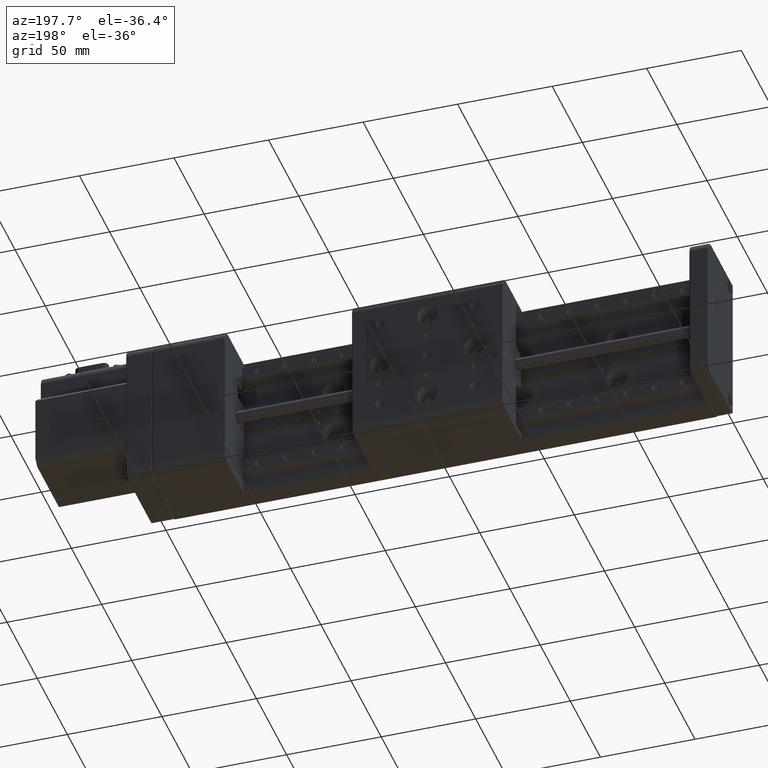
[diagram: clean part render]
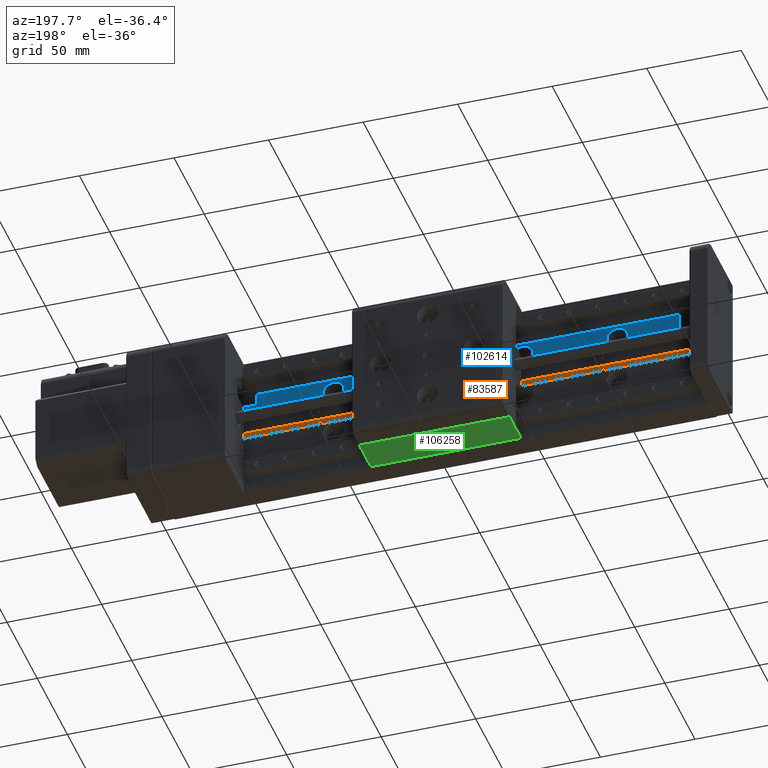
[diagram: same view with three faces highlighted in distinct colors, each labeled with its STEP entity id]
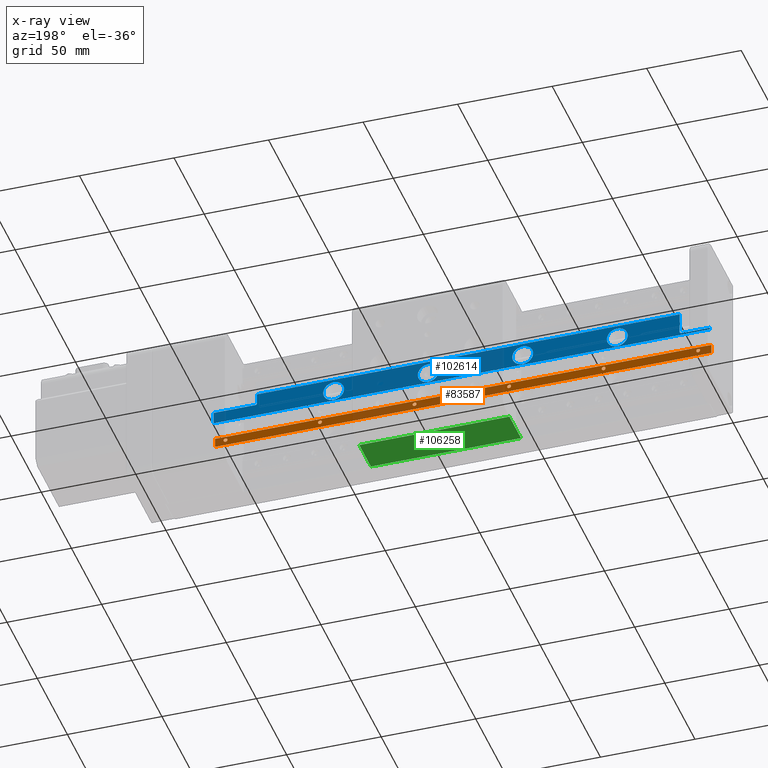
[diagram: x-ray of the same camera — body ghosted, the three highlighted faces saturated]
A machine part, auxiliary view with three faces highlighted in distinct colors.
The next image is the same camera in x-ray (body ghosted, the three faces saturated) — at least one of them is partly hidden behind the body in this view.
Their STEP definitions:

[orange] entity #83587 — the highlighted planar face has unit normal (0, -1, 0).
#45 = EDGE_CURVE ( 'NONE', #28521, #17861, #93729, .T. ) ;
#1032 = DIRECTION ( 'NONE',  ( -0.0000000000000000000, 1.000000000000000000, -0.0000000000000000000 ) ) ;
#1199 = EDGE_CURVE ( 'NONE', #88093, #45872, #95722, .T. ) ;
#2012 = CIRCLE ( 'NONE', #103879, 1.024999999999998100 ) ;
#4675 = CIRCLE ( 'NONE', #99917, 1.024999999999998100 ) ;
#5235 = DIRECTION ( 'NONE',  ( -0.0000000000000000000, 1.000000000000000000, -0.0000000000000000000 ) ) ;
#6503 = EDGE_CURVE ( 'NONE', #17861, #28521, #38615, .T. ) ;
#6964 = ORIENTED_EDGE ( 'NONE', *, *, #70150, .F. ) ;
#7733 = CIRCLE ( 'NONE', #11688, 1.024999999999998100 ) ;
#7902 = DIRECTION ( 'NONE',  ( -0.0000000000000000000, 1.000000000000000000, -0.0000000000000000000 ) ) ;
#7983 = CARTESIAN_POINT ( 'NONE',  ( 115.4999999999999400, 9.500000000000005300, -44.52499999999999900 ) ) ;
#9391 = AXIS2_PLACEMENT_3D ( 'NONE', #21254, #50996, #97934 ) ;
#10369 = CIRCLE ( 'NONE', #119397, 1.024999999999998100 ) ;
#10502 = EDGE_CURVE ( 'NONE', #93958, #53678, #7733, .T. ) ;
#11158 = ORIENTED_EDGE ( 'NONE', *, *, #44471, .F. ) ;
#11688 = AXIS2_PLACEMENT_3D ( 'NONE', #118979, #51442, #61698 ) ;
#12665 = CARTESIAN_POINT ( 'NONE',  ( 15.49999999999995700, 9.500000000000007100, -44.52499999999999900 ) ) ;
#14495 = CARTESIAN_POINT ( 'NONE',  ( 65.49999999999994300, 9.500000000000005300, -44.52499999999999900 ) ) ;
#14934 = EDGE_LOOP ( 'NONE', ( #76589, #116644, #56588, #76408 ) ) ;
#17861 = VERTEX_POINT ( 'NONE', #103839 ) ;
#19577 = CARTESIAN_POINT ( 'NONE',  ( 115.4999999999999400, 9.500000000000005300, -43.50000000000000000 ) ) ;
#19748 = EDGE_CURVE ( 'NONE', #24337, #52089, #116614, .T. ) ;
#19954 = DIRECTION ( 'NONE',  ( 0.0000000000000000000, -0.0000000000000000000, -1.000000000000000000 ) ) ;
#21254 = CARTESIAN_POINT ( 'NONE',  ( 65.49999999999994300, 9.500000000000005300, -43.50000000000000000 ) ) ;
#21904 = AXIS2_PLACEMENT_3D ( 'NONE', #104768, #57785, #75905 ) ;
#22689 = AXIS2_PLACEMENT_3D ( 'NONE', #57659, #1032, #113694 ) ;
#24337 = VERTEX_POINT ( 'NONE', #83739 ) ;
#26008 = ORIENTED_EDGE ( 'NONE', *, *, #88448, .F. ) ;
#26400 = DIRECTION ( 'NONE',  ( -0.0000000000000000000, 1.000000000000000000, -0.0000000000000000000 ) ) ;
#26488 = VERTEX_POINT ( 'NONE', #84172 ) ;
#26610 = EDGE_CURVE ( 'NONE', #92352, #81903, #74490, .T. ) ;
#28400 = FACE_BOUND ( 'NONE', #58265, .T. ) ;
#28521 = VERTEX_POINT ( 'NONE', #53864 ) ;
#28777 = CARTESIAN_POINT ( 'NONE',  ( 270.9999999999999400, 9.500000000000000000, -46.50000000000000000 ) ) ;
#29769 = CARTESIAN_POINT ( 'NONE',  ( 8.500000000000007100, 9.500000000000000000, -41.50000000000000000 ) ) ;
#29947 = FACE_BOUND ( 'NONE', #79765, .T. ) ;
#31520 = CARTESIAN_POINT ( 'NONE',  ( 165.4999999999999400, 9.500000000000003600, -44.52499999999999900 ) ) ;
#31997 = VERTEX_POINT ( 'NONE', #28777 ) ;
#32961 = ORIENTED_EDGE ( 'NONE', *, *, #10502, .F. ) ;
#33155 = DIRECTION ( 'NONE',  ( -0.0000000000000000000, 1.000000000000000000, -0.0000000000000000000 ) ) ;
#33468 = CARTESIAN_POINT ( 'NONE',  ( 271.0000000000000000, 9.499999999999994700, -41.50000000000000000 ) ) ;
#34852 = EDGE_CURVE ( 'NONE', #26488, #96425, #2012, .T. ) ;
#37070 = EDGE_LOOP ( 'NONE', ( #41878, #11158 ) ) ;
#37331 = FACE_BOUND ( 'NONE', #78215, .T. ) ;
#38615 = CIRCLE ( 'NONE', #85518, 1.024999999999998100 ) ;
#39602 = LINE ( 'NONE', #64749, #108802 ) ;
#39608 = CIRCLE ( 'NONE', #75544, 1.024999999999998100 ) ;
#40371 = DIRECTION ( 'NONE',  ( -1.000000000000000000, -0.0000000000000000000, -0.0000000000000000000 ) ) ;
#40762 = EDGE_CURVE ( 'NONE', #100096, #74455, #120085, .T. ) ;
#41680 = CARTESIAN_POINT ( 'NONE',  ( 15.49999999999995700, 9.500000000000007100, -43.50000000000000000 ) ) ;
#41878 = ORIENTED_EDGE ( 'NONE', *, *, #26610, .F. ) ;
#43288 = CARTESIAN_POINT ( 'NONE',  ( 65.49999999999994300, 9.500000000000005300, -42.47500000000000100 ) ) ;
#43524 = AXIS2_PLACEMENT_3D ( 'NONE', #19577, #84360, #121495 ) ;
#44471 = EDGE_CURVE ( 'NONE', #81903, #92352, #117945, .T. ) ;
#45872 = VERTEX_POINT ( 'NONE', #7983 ) ;
#46834 = CARTESIAN_POINT ( 'NONE',  ( 115.4999999999999400, 9.500000000000005300, -43.50000000000000000 ) ) ;
#47360 = ORIENTED_EDGE ( 'NONE', *, *, #99134, .F. ) ;
#49188 = FACE_OUTER_BOUND ( 'NONE', #14934, .T. ) ;
#50628 = CARTESIAN_POINT ( 'NONE',  ( 165.4999999999999400, 9.500000000000003600, -43.50000000000000000 ) ) ;
#50996 = DIRECTION ( 'NONE',  ( -0.0000000000000000000, 1.000000000000000000, -0.0000000000000000000 ) ) ;
#51442 = DIRECTION ( 'NONE',  ( -0.0000000000000000000, 1.000000000000000000, -0.0000000000000000000 ) ) ;
#52089 = VERTEX_POINT ( 'NONE', #12665 ) ;
#53678 = VERTEX_POINT ( 'NONE', #57930 ) ;
#53864 = CARTESIAN_POINT ( 'NONE',  ( 265.4999999999999400, 9.500000000000001800, -44.52499999999999900 ) ) ;
#55183 = ORIENTED_EDGE ( 'NONE', *, *, #45, .F. ) ;
#56235 = DIRECTION ( 'NONE',  ( -0.0000000000000000000, -0.0000000000000000000, 1.000000000000000000 ) ) ;
#56588 = ORIENTED_EDGE ( 'NONE', *, *, #61706, .F. ) ;
#57659 = CARTESIAN_POINT ( 'NONE',  ( 265.4999999999999400, 9.500000000000001800, -43.50000000000000700 ) ) ;
#57785 = DIRECTION ( 'NONE',  ( -0.0000000000000000000, 1.000000000000000000, -0.0000000000000000000 ) ) ;
#57930 = CARTESIAN_POINT ( 'NONE',  ( 215.4999999999999700, 9.500000000000003600, -44.52499999999999900 ) ) ;
#57943 = CARTESIAN_POINT ( 'NONE',  ( 151.9999999999999700, 9.500000000000000000, -40.00000000000000000 ) ) ;
#58265 = EDGE_LOOP ( 'NONE', ( #99944, #55183 ) ) ;
#59242 = DIRECTION ( 'NONE',  ( 0.0000000000000000000, 0.0000000000000000000, 1.000000000000000000 ) ) ;
#61698 = DIRECTION ( 'NONE',  ( 0.0000000000000000000, 0.0000000000000000000, 1.000000000000000000 ) ) ;
#61706 = EDGE_CURVE ( 'NONE', #31997, #88048, #117358, .T. ) ;
#63193 = ORIENTED_EDGE ( 'NONE', *, *, #19748, .F. ) ;
#64749 = CARTESIAN_POINT ( 'NONE',  ( 151.9999999999999700, 9.500000000000000000, -41.50000000000000000 ) ) ;
#65157 = DIRECTION ( 'NONE',  ( 0.0000000000000000000, 0.0000000000000000000, 1.000000000000000000 ) ) ;
#66158 = ORIENTED_EDGE ( 'NONE', *, *, #108063, .F. ) ;
#66482 = CARTESIAN_POINT ( 'NONE',  ( 8.500000000000007100, 9.500000000000000000, -33.50000000000000000 ) ) ;
#66587 = PLANE ( 'NONE',  #90743 ) ;
#70150 = EDGE_CURVE ( 'NONE', #52089, #24337, #10369, .T. ) ;
#71070 = EDGE_CURVE ( 'NONE', #74455, #88048, #39602, .T. ) ;
#71517 = CARTESIAN_POINT ( 'NONE',  ( 271.0000000000000000, 9.499999999999994700, -70.00000000000000000 ) ) ;
#72022 = ORIENTED_EDGE ( 'NONE', *, *, #34852, .F. ) ;
#74123 = DIRECTION ( 'NONE',  ( -0.0000000000000000000, 1.000000000000000000, -0.0000000000000000000 ) ) ;
#74455 = VERTEX_POINT ( 'NONE', #29769 ) ;
#74490 = CIRCLE ( 'NONE', #21904, 1.024999999999998100 ) ;
#74610 = DIRECTION ( 'NONE',  ( 1.000000000000000000, 0.0000000000000000000, 0.0000000000000000000 ) ) ;
#74739 = CARTESIAN_POINT ( 'NONE',  ( 215.4999999999999700, 9.500000000000003600, -43.50000000000000000 ) ) ;
#75041 = VECTOR ( 'NONE', #40371, 1000.000000000000000 ) ;
#75544 = AXIS2_PLACEMENT_3D ( 'NONE', #74739, #7902, #102375 ) ;
#75905 = DIRECTION ( 'NONE',  ( 0.0000000000000000000, 0.0000000000000000000, 1.000000000000000000 ) ) ;
#76408 = ORIENTED_EDGE ( 'NONE', *, *, #95863, .T. ) ;
#76589 = ORIENTED_EDGE ( 'NONE', *, *, #40762, .T. ) ;
#77097 = FACE_BOUND ( 'NONE', #100133, .T. ) ;
#78215 = EDGE_LOOP ( 'NONE', ( #63193, #6964 ) ) ;
#79765 = EDGE_LOOP ( 'NONE', ( #86781, #26008 ) ) ;
#80787 = DIRECTION ( 'NONE',  ( 0.0000000000000000000, 0.0000000000000000000, 1.000000000000000000 ) ) ;
#81903 = VERTEX_POINT ( 'NONE', #14495 ) ;
#83587 = ADVANCED_FACE ( 'NONE', ( #37331, #84473, #29947, #77097, #28400, #49188, #112476 ), #66587, .F. ) ;
#83614 = DIRECTION ( 'NONE',  ( 0.0000000000000000000, 0.0000000000000000000, 1.000000000000000000 ) ) ;
#83739 = CARTESIAN_POINT ( 'NONE',  ( 15.49999999999995700, 9.500000000000007100, -42.47500000000000100 ) ) ;
#84172 = CARTESIAN_POINT ( 'NONE',  ( 165.4999999999999400, 9.500000000000003600, -42.47500000000000100 ) ) ;
#84285 = DIRECTION ( 'NONE',  ( 0.0000000000000000000, 0.0000000000000000000, 1.000000000000000000 ) ) ;
#84360 = DIRECTION ( 'NONE',  ( -0.0000000000000000000, 1.000000000000000000, -0.0000000000000000000 ) ) ;
#84473 = FACE_BOUND ( 'NONE', #37070, .T. ) ;
#84488 = CARTESIAN_POINT ( 'NONE',  ( 215.4999999999999700, 9.500000000000003600, -42.47500000000000100 ) ) ;
#84739 = DIRECTION ( 'NONE',  ( 0.0000000000000000000, -1.000000000000000000, 0.0000000000000000000 ) ) ;
#85518 = AXIS2_PLACEMENT_3D ( 'NONE', #111595, #74123, #83614 ) ;
#86781 = ORIENTED_EDGE ( 'NONE', *, *, #1199, .F. ) ;
#87354 = CARTESIAN_POINT ( 'NONE',  ( 8.500000000000007100, 9.500000000000000000, -46.50000000000000000 ) ) ;
#88048 = VERTEX_POINT ( 'NONE', #33468 ) ;
#88093 = VERTEX_POINT ( 'NONE', #99839 ) ;
#88448 = EDGE_CURVE ( 'NONE', #45872, #88093, #4675, .T. ) ;
#90103 = CARTESIAN_POINT ( 'NONE',  ( 15.49999999999995700, 9.500000000000007100, -43.50000000000000000 ) ) ;
#90743 = AXIS2_PLACEMENT_3D ( 'NONE', #57943, #84739, #19954 ) ;
#92305 = VECTOR ( 'NONE', #108577, 1000.000000000000000 ) ;
#92352 = VERTEX_POINT ( 'NONE', #43288 ) ;
#92764 = EDGE_LOOP ( 'NONE', ( #72022, #66158 ) ) ;
#92995 = CIRCLE ( 'NONE', #97915, 1.024999999999998100 ) ;
#93729 = CIRCLE ( 'NONE', #22689, 1.024999999999998100 ) ;
#93958 = VERTEX_POINT ( 'NONE', #84488 ) ;
#94559 = DIRECTION ( 'NONE',  ( -0.0000000000000000000, 1.000000000000000000, -0.0000000000000000000 ) ) ;
#95722 = CIRCLE ( 'NONE', #43524, 1.024999999999998100 ) ;
#95863 = EDGE_CURVE ( 'NONE', #31997, #100096, #103091, .T. ) ;
#96425 = VERTEX_POINT ( 'NONE', #31520 ) ;
#97570 = DIRECTION ( 'NONE',  ( -0.0000000000000000000, 1.000000000000000000, -0.0000000000000000000 ) ) ;
#97915 = AXIS2_PLACEMENT_3D ( 'NONE', #121639, #26400, #65157 ) ;
#97934 = DIRECTION ( 'NONE',  ( 0.0000000000000000000, 0.0000000000000000000, 1.000000000000000000 ) ) ;
#99115 = DIRECTION ( 'NONE',  ( 0.0000000000000000000, 0.0000000000000000000, 1.000000000000000000 ) ) ;
#99134 = EDGE_CURVE ( 'NONE', #53678, #93958, #39608, .T. ) ;
#99839 = CARTESIAN_POINT ( 'NONE',  ( 115.4999999999999400, 9.500000000000005300, -42.47500000000000100 ) ) ;
#99917 = AXIS2_PLACEMENT_3D ( 'NONE', #46834, #94559, #84285 ) ;
#99944 = ORIENTED_EDGE ( 'NONE', *, *, #6503, .F. ) ;
#100096 = VERTEX_POINT ( 'NONE', #103167 ) ;
#100133 = EDGE_LOOP ( 'NONE', ( #32961, #47360 ) ) ;
#100927 = VECTOR ( 'NONE', #56235, 1000.000000000000000 ) ;
#102375 = DIRECTION ( 'NONE',  ( 0.0000000000000000000, 0.0000000000000000000, 1.000000000000000000 ) ) ;
#103091 = LINE ( 'NONE', #87354, #75041 ) ;
#103167 = CARTESIAN_POINT ( 'NONE',  ( 8.500000000000007100, 9.500000000000000000, -46.50000000000000000 ) ) ;
#103839 = CARTESIAN_POINT ( 'NONE',  ( 265.4999999999999400, 9.500000000000001800, -42.47500000000000900 ) ) ;
#103879 = AXIS2_PLACEMENT_3D ( 'NONE', #50628, #97570, #59242 ) ;
#104768 = CARTESIAN_POINT ( 'NONE',  ( 65.49999999999994300, 9.500000000000005300, -43.50000000000000000 ) ) ;
#108063 = EDGE_CURVE ( 'NONE', #96425, #26488, #92995, .T. ) ;
#108577 = DIRECTION ( 'NONE',  ( 0.0000000000000000000, 0.0000000000000000000, 1.000000000000000000 ) ) ;
#108802 = VECTOR ( 'NONE', #74610, 1000.000000000000000 ) ;
#111595 = CARTESIAN_POINT ( 'NONE',  ( 265.4999999999999400, 9.500000000000001800, -43.50000000000000700 ) ) ;
#112476 = FACE_BOUND ( 'NONE', #92764, .T. ) ;
#113694 = DIRECTION ( 'NONE',  ( 0.0000000000000000000, 0.0000000000000000000, 1.000000000000000000 ) ) ;
#116614 = CIRCLE ( 'NONE', #122020, 1.024999999999998100 ) ;
#116644 = ORIENTED_EDGE ( 'NONE', *, *, #71070, .T. ) ;
#117358 = LINE ( 'NONE', #71517, #92305 ) ;
#117945 = CIRCLE ( 'NONE', #9391, 1.024999999999998100 ) ;
#118979 = CARTESIAN_POINT ( 'NONE',  ( 215.4999999999999700, 9.500000000000003600, -43.50000000000000000 ) ) ;
#119397 = AXIS2_PLACEMENT_3D ( 'NONE', #41680, #5235, #80787 ) ;
#120085 = LINE ( 'NONE', #66482, #100927 ) ;
#121495 = DIRECTION ( 'NONE',  ( 0.0000000000000000000, 0.0000000000000000000, 1.000000000000000000 ) ) ;
#121639 = CARTESIAN_POINT ( 'NONE',  ( 165.4999999999999400, 9.500000000000003600, -43.50000000000000000 ) ) ;
#122020 = AXIS2_PLACEMENT_3D ( 'NONE', #90103, #33155, #99115 ) ;

[blue] entity #102614 — the highlighted planar face has unit normal (-0, 1, 0).
#449 = CIRCLE ( 'NONE', #17482, 1.000000000000000900 ) ;
#1800 = EDGE_CURVE ( 'NONE', #79015, #82375, #68941, .T. ) ;
#4577 = ORIENTED_EDGE ( 'NONE', *, *, #84939, .F. ) ;
#6577 = DIRECTION ( 'NONE',  ( 0.0000000000000000000, 0.0000000000000000000, 1.000000000000000000 ) ) ;
#7468 = DIRECTION ( 'NONE',  ( 1.000000000000000000, 0.0000000000000000000, 0.0000000000000000000 ) ) ;
#7617 = VECTOR ( 'NONE', #14237, 1000.000000000000000 ) ;
#8423 = VERTEX_POINT ( 'NONE', #13089 ) ;
#8553 = EDGE_CURVE ( 'NONE', #114875, #101901, #44789, .T. ) ;
#9168 = ORIENTED_EDGE ( 'NONE', *, *, #8553, .T. ) ;
#9555 = EDGE_CURVE ( 'NONE', #36613, #109130, #89607, .T. ) ;
#12028 = DIRECTION ( 'NONE',  ( -1.000000000000000000, 0.0000000000000000000, 0.0000000000000000000 ) ) ;
#12189 = DIRECTION ( 'NONE',  ( -1.000000000000000000, -0.0000000000000000000, -0.0000000000000000000 ) ) ;
#12318 = DIRECTION ( 'NONE',  ( -0.0000000000000000000, 1.000000000000000000, -0.0000000000000000000 ) ) ;
#13089 = CARTESIAN_POINT ( 'NONE',  ( 57.49999999999999300, 12.00000000000000000, -21.99999999999999600 ) ) ;
#14237 = DIRECTION ( 'NONE',  ( -1.000000000000000000, 0.0000000000000000000, 9.130123557772667100E-017 ) ) ;
#14949 = DIRECTION ( 'NONE',  ( 0.0000000000000000000, -0.0000000000000000000, 1.000000000000000000 ) ) ;
#16266 = ORIENTED_EDGE ( 'NONE', *, *, #38659, .T. ) ;
#16881 = CARTESIAN_POINT ( 'NONE',  ( 248.0000000000000000, 12.00000000000000000, -25.99999999999999600 ) ) ;
#17482 = AXIS2_PLACEMENT_3D ( 'NONE', #28963, #122560, #18645 ) ;
#18645 = DIRECTION ( 'NONE',  ( 0.0000000000000000000, 0.0000000000000000000, 1.000000000000000000 ) ) ;
#19058 = CARTESIAN_POINT ( 'NONE',  ( 157.5000000000000000, 12.00000000000000000, -33.00000000000000000 ) ) ;
#19137 = DIRECTION ( 'NONE',  ( 0.0000000000000000000, -1.000000000000000000, -0.0000000000000000000 ) ) ;
#19299 = DIRECTION ( 'NONE',  ( -0.0000000000000000000, 1.000000000000000000, -0.0000000000000000000 ) ) ;
#21400 = ORIENTED_EDGE ( 'NONE', *, *, #113176, .F. ) ;
#22244 = DIRECTION ( 'NONE',  ( -0.0000000000000000000, 1.000000000000000000, -0.0000000000000000000 ) ) ;
#22547 = CIRCLE ( 'NONE', #44353, 5.500000000000005300 ) ;
#23342 = VERTEX_POINT ( 'NONE', #25504 ) ;
#23414 = DIRECTION ( 'NONE',  ( -0.0000000000000000000, 1.000000000000000000, -0.0000000000000000000 ) ) ;
#24491 = DIRECTION ( 'NONE',  ( -0.0000000000000000000, 1.000000000000000000, 0.0000000000000000000 ) ) ;
#24530 = VERTEX_POINT ( 'NONE', #57738 ) ;
#24842 = DIRECTION ( 'NONE',  ( -0.0000000000000000000, 1.000000000000000000, -0.0000000000000000000 ) ) ;
#25418 = CARTESIAN_POINT ( 'NONE',  ( 249.0000000000000000, 12.00000000000000000, -26.99999999999999600 ) ) ;
#25504 = CARTESIAN_POINT ( 'NONE',  ( 24.50000000000002100, 12.00000000000000000, -20.50000000000000000 ) ) ;
#25881 = EDGE_CURVE ( 'NONE', #82375, #79015, #85988, .T. ) ;
#26232 = ORIENTED_EDGE ( 'NONE', *, *, #1800, .F. ) ;
#26667 = AXIS2_PLACEMENT_3D ( 'NONE', #72611, #82127, #6577 ) ;
#28953 = ORIENTED_EDGE ( 'NONE', *, *, #86281, .F. ) ;
#28963 = CARTESIAN_POINT ( 'NONE',  ( 23.50000000000002100, 12.00000000000000000, -31.50000000000000000 ) ) ;
#29019 = DIRECTION ( 'NONE',  ( 0.0000000000000000000, 0.0000000000000000000, 1.000000000000000000 ) ) ;
#29249 = VERTEX_POINT ( 'NONE', #92291 ) ;
#29349 = VECTOR ( 'NONE', #41142, 1000.000000000000000 ) ;
#29857 = VECTOR ( 'NONE', #29019, 1000.000000000000000 ) ;
#30711 = CARTESIAN_POINT ( 'NONE',  ( 152.0000000000000000, 12.00000000000000000, -32.50000000000000000 ) ) ;
#31402 = CARTESIAN_POINT ( 'NONE',  ( 57.49999999999999300, 12.00000000000000000, -27.50000000000000000 ) ) ;
#32655 = ORIENTED_EDGE ( 'NONE', *, *, #64631, .F. ) ;
#32786 = LINE ( 'NONE', #75615, #29857 ) ;
#33330 = DIRECTION ( 'NONE',  ( 0.0000000000000000000, 0.0000000000000000000, 1.000000000000000000 ) ) ;
#33865 = EDGE_LOOP ( 'NONE', ( #56747, #48236 ) ) ;
#35211 = EDGE_LOOP ( 'NONE', ( #4577, #76056 ) ) ;
#36507 = CARTESIAN_POINT ( 'NONE',  ( 8.500000000000007100, 12.00000000000000000, -32.50000000000000000 ) ) ;
#36550 = CIRCLE ( 'NONE', #76539, 5.500000000000005300 ) ;
#36613 = VERTEX_POINT ( 'NONE', #43969 ) ;
#36804 = EDGE_CURVE ( 'NONE', #67850, #53156, #32786, .T. ) ;
#37721 = AXIS2_PLACEMENT_3D ( 'NONE', #76415, #19137, #85113 ) ;
#37970 = FACE_BOUND ( 'NONE', #88466, .T. ) ;
#38659 = EDGE_CURVE ( 'NONE', #55371, #59858, #449, .T. ) ;
#38709 = EDGE_LOOP ( 'NONE', ( #26232, #93173 ) ) ;
#39483 = FACE_OUTER_BOUND ( 'NONE', #98580, .T. ) ;
#41142 = DIRECTION ( 'NONE',  ( 0.0000000000000000000, 0.0000000000000000000, 1.000000000000000000 ) ) ;
#42013 = CARTESIAN_POINT ( 'NONE',  ( 152.0000000000000000, 12.00000000000000000, -26.99999999999998900 ) ) ;
#42369 = EDGE_CURVE ( 'NONE', #67850, #117092, #78693, .T. ) ;
#43151 = CARTESIAN_POINT ( 'NONE',  ( 157.5000000000000000, 12.00000000000000000, -27.50000000000000000 ) ) ;
#43495 = ORIENTED_EDGE ( 'NONE', *, *, #46483, .F. ) ;
#43969 = CARTESIAN_POINT ( 'NONE',  ( 207.5000000000000300, 12.00000000000000000, -33.00000000000000000 ) ) ;
#44353 = AXIS2_PLACEMENT_3D ( 'NONE', #89491, #22244, #116660 ) ;
#44789 = LINE ( 'NONE', #80368, #115563 ) ;
#45503 = CARTESIAN_POINT ( 'NONE',  ( 207.5000000000000300, 12.00000000000000000, -21.99999999999999600 ) ) ;
#46418 = LINE ( 'NONE', #64037, #118620 ) ;
#46483 = EDGE_CURVE ( 'NONE', #59790, #29249, #117822, .T. ) ;
#46853 = FACE_BOUND ( 'NONE', #33865, .T. ) ;
#48236 = ORIENTED_EDGE ( 'NONE', *, *, #55967, .F. ) ;
#51203 = CARTESIAN_POINT ( 'NONE',  ( 8.500000000000007100, 12.00000000000000000, -33.50000000000000000 ) ) ;
#51657 = DIRECTION ( 'NONE',  ( -0.0000000000000000000, 1.000000000000000000, -0.0000000000000000000 ) ) ;
#52533 = CARTESIAN_POINT ( 'NONE',  ( 207.5000000000000300, 12.00000000000000000, -27.50000000000000000 ) ) ;
#53156 = VERTEX_POINT ( 'NONE', #113983 ) ;
#53195 = DIRECTION ( 'NONE',  ( 0.0000000000000000000, 0.0000000000000000000, 1.000000000000000000 ) ) ;
#53418 = PLANE ( 'NONE',  #92687 ) ;
#53659 = VERTEX_POINT ( 'NONE', #76840 ) ;
#54157 = CIRCLE ( 'NONE', #73040, 5.500000000000005300 ) ;
#54982 = AXIS2_PLACEMENT_3D ( 'NONE', #31402, #12318, #59400 ) ;
#55136 = CARTESIAN_POINT ( 'NONE',  ( 24.50000000000002100, 12.00000000000000000, -31.50000000000000000 ) ) ;
#55371 = VERTEX_POINT ( 'NONE', #86353 ) ;
#55967 = EDGE_CURVE ( 'NONE', #53659, #8423, #54157, .T. ) ;
#56735 = ORIENTED_EDGE ( 'NONE', *, *, #116941, .F. ) ;
#56747 = ORIENTED_EDGE ( 'NONE', *, *, #82287, .F. ) ;
#57532 = LINE ( 'NONE', #30711, #104724 ) ;
#57738 = CARTESIAN_POINT ( 'NONE',  ( 107.5000000000000000, 12.00000000000000000, -33.00000000000000000 ) ) ;
#59400 = DIRECTION ( 'NONE',  ( 0.0000000000000000000, 0.0000000000000000000, 1.000000000000000000 ) ) ;
#59790 = VERTEX_POINT ( 'NONE', #74067 ) ;
#59858 = VERTEX_POINT ( 'NONE', #55136 ) ;
#59873 = CARTESIAN_POINT ( 'NONE',  ( 107.5000000000000000, 12.00000000000000000, -27.50000000000000000 ) ) ;
#61490 = VECTOR ( 'NONE', #118835, 1000.000000000000000 ) ;
#64037 = CARTESIAN_POINT ( 'NONE',  ( 8.500000000000007100, 12.00000000000000000, -33.50000000000000000 ) ) ;
#64631 = EDGE_CURVE ( 'NONE', #109130, #36613, #36550, .T. ) ;
#66982 = VECTOR ( 'NONE', #12189, 1000.000000000000000 ) ;
#67850 = VERTEX_POINT ( 'NONE', #16881 ) ;
#68096 = LINE ( 'NONE', #42013, #7617 ) ;
#68152 = ORIENTED_EDGE ( 'NONE', *, *, #42369, .T. ) ;
#68941 = CIRCLE ( 'NONE', #105965, 5.500000000000001800 ) ;
#70125 = DIRECTION ( 'NONE',  ( 0.0000000000000000000, 0.0000000000000000000, 1.000000000000000000 ) ) ;
#70705 = DIRECTION ( 'NONE',  ( 0.0000000000000000000, 0.0000000000000000000, 1.000000000000000000 ) ) ;
#71054 = ORIENTED_EDGE ( 'NONE', *, *, #81239, .F. ) ;
#72611 = CARTESIAN_POINT ( 'NONE',  ( 157.5000000000000000, 12.00000000000000000, -27.50000000000000000 ) ) ;
#73040 = AXIS2_PLACEMENT_3D ( 'NONE', #84871, #19299, #100437 ) ;
#73238 = ORIENTED_EDGE ( 'NONE', *, *, #36804, .F. ) ;
#74067 = CARTESIAN_POINT ( 'NONE',  ( 270.9999999999999400, 12.00000000000000000, -33.50000000000000000 ) ) ;
#75350 = AXIS2_PLACEMENT_3D ( 'NONE', #59873, #51657, #70125 ) ;
#75615 = CARTESIAN_POINT ( 'NONE',  ( 248.0000000000000000, 12.00000000000000000, -40.00000000000000000 ) ) ;
#76056 = ORIENTED_EDGE ( 'NONE', *, *, #103090, .F. ) ;
#76415 = CARTESIAN_POINT ( 'NONE',  ( 249.0000000000000000, 12.00000000000000400, -25.99999999999999600 ) ) ;
#76539 = AXIS2_PLACEMENT_3D ( 'NONE', #79901, #23414, #33330 ) ;
#76840 = CARTESIAN_POINT ( 'NONE',  ( 57.49999999999999300, 12.00000000000000000, -33.00000000000000000 ) ) ;
#77251 = LINE ( 'NONE', #97611, #66982 ) ;
#77881 = EDGE_CURVE ( 'NONE', #114875, #59790, #46418, .T. ) ;
#78693 = CIRCLE ( 'NONE', #37721, 1.000000000000000900 ) ;
#79015 = VERTEX_POINT ( 'NONE', #109532 ) ;
#79888 = ORIENTED_EDGE ( 'NONE', *, *, #9555, .F. ) ;
#79901 = CARTESIAN_POINT ( 'NONE',  ( 207.5000000000000300, 12.00000000000000000, -27.50000000000000000 ) ) ;
#80368 = CARTESIAN_POINT ( 'NONE',  ( 8.500000000000007100, 12.00000000000000000, 0.0000000000000000000 ) ) ;
#81239 = EDGE_CURVE ( 'NONE', #29249, #117092, #68096, .T. ) ;
#82127 = DIRECTION ( 'NONE',  ( -0.0000000000000000000, 1.000000000000000000, -0.0000000000000000000 ) ) ;
#82287 = EDGE_CURVE ( 'NONE', #8423, #53659, #117570, .T. ) ;
#82375 = VERTEX_POINT ( 'NONE', #19058 ) ;
#83615 = LINE ( 'NONE', #98633, #61490 ) ;
#83692 = FACE_BOUND ( 'NONE', #35211, .T. ) ;
#84871 = CARTESIAN_POINT ( 'NONE',  ( 57.49999999999999300, 12.00000000000000000, -27.50000000000000000 ) ) ;
#84939 = EDGE_CURVE ( 'NONE', #100719, #24530, #22547, .T. ) ;
#85113 = DIRECTION ( 'NONE',  ( 0.0000000000000000000, 0.0000000000000000000, 1.000000000000000000 ) ) ;
#85988 = CIRCLE ( 'NONE', #26667, 5.500000000000001800 ) ;
#86281 = EDGE_CURVE ( 'NONE', #55371, #101901, #57532, .T. ) ;
#86353 = CARTESIAN_POINT ( 'NONE',  ( 23.50000000000002100, 12.00000000000000000, -32.50000000000000000 ) ) ;
#86480 = CARTESIAN_POINT ( 'NONE',  ( 107.5000000000000000, 12.00000000000000000, -21.99999999999999600 ) ) ;
#88466 = EDGE_LOOP ( 'NONE', ( #32655, #79888 ) ) ;
#89491 = CARTESIAN_POINT ( 'NONE',  ( 107.5000000000000000, 12.00000000000000000, -27.50000000000000000 ) ) ;
#89607 = CIRCLE ( 'NONE', #114368, 5.500000000000005300 ) ;
#92291 = CARTESIAN_POINT ( 'NONE',  ( 270.9999999999999400, 12.00000000000000000, -27.00000000000000000 ) ) ;
#92687 = AXIS2_PLACEMENT_3D ( 'NONE', #118120, #24491, #14949 ) ;
#93173 = ORIENTED_EDGE ( 'NONE', *, *, #25881, .F. ) ;
#97611 = CARTESIAN_POINT ( 'NONE',  ( 8.500000000000007100, 12.00000000000000000, -20.50000000000000000 ) ) ;
#98580 = EDGE_LOOP ( 'NONE', ( #21400, #56735, #73238, #68152, #71054, #43495, #98848, #9168, #28953, #16266 ) ) ;
#98633 = CARTESIAN_POINT ( 'NONE',  ( 24.50000000000002100, 12.00000000000000000, -40.00000000000000000 ) ) ;
#98848 = ORIENTED_EDGE ( 'NONE', *, *, #77881, .F. ) ;
#100437 = DIRECTION ( 'NONE',  ( 0.0000000000000000000, 0.0000000000000000000, 1.000000000000000000 ) ) ;
#100719 = VERTEX_POINT ( 'NONE', #86480 ) ;
#101901 = VERTEX_POINT ( 'NONE', #36507 ) ;
#102614 = ADVANCED_FACE ( 'NONE', ( #39483, #37970, #46853, #108680, #83692 ), #53418, .T. ) ;
#103090 = EDGE_CURVE ( 'NONE', #24530, #100719, #118638, .T. ) ;
#104724 = VECTOR ( 'NONE', #12028, 1000.000000000000000 ) ;
#105965 = AXIS2_PLACEMENT_3D ( 'NONE', #43151, #117725, #70705 ) ;
#108680 = FACE_BOUND ( 'NONE', #38709, .T. ) ;
#109130 = VERTEX_POINT ( 'NONE', #45503 ) ;
#109532 = CARTESIAN_POINT ( 'NONE',  ( 157.5000000000000000, 12.00000000000000000, -22.00000000000000000 ) ) ;
#109727 = DIRECTION ( 'NONE',  ( 0.0000000000000000000, 0.0000000000000000000, 1.000000000000000000 ) ) ;
#113176 = EDGE_CURVE ( 'NONE', #23342, #59858, #83615, .T. ) ;
#113983 = CARTESIAN_POINT ( 'NONE',  ( 248.0000000000000000, 12.00000000000000000, -20.50000000000000000 ) ) ;
#114368 = AXIS2_PLACEMENT_3D ( 'NONE', #52533, #24842, #109727 ) ;
#114875 = VERTEX_POINT ( 'NONE', #51203 ) ;
#115563 = VECTOR ( 'NONE', #53195, 1000.000000000000000 ) ;
#116660 = DIRECTION ( 'NONE',  ( 0.0000000000000000000, 0.0000000000000000000, 1.000000000000000000 ) ) ;
#116919 = CARTESIAN_POINT ( 'NONE',  ( 271.0000000000000000, 12.00000000000000000, -40.00000000000000000 ) ) ;
#116941 = EDGE_CURVE ( 'NONE', #53156, #23342, #77251, .T. ) ;
#117092 = VERTEX_POINT ( 'NONE', #25418 ) ;
#117570 = CIRCLE ( 'NONE', #54982, 5.500000000000005300 ) ;
#117725 = DIRECTION ( 'NONE',  ( -0.0000000000000000000, 1.000000000000000000, -0.0000000000000000000 ) ) ;
#117822 = LINE ( 'NONE', #116919, #29349 ) ;
#118120 = CARTESIAN_POINT ( 'NONE',  ( 152.0000000000000000, 12.00000000000000000, -40.00000000000000000 ) ) ;
#118620 = VECTOR ( 'NONE', #7468, 1000.000000000000000 ) ;
#118638 = CIRCLE ( 'NONE', #75350, 5.500000000000005300 ) ;
#118835 = DIRECTION ( 'NONE',  ( 0.0000000000000000000, 0.0000000000000000000, -1.000000000000000000 ) ) ;
#122560 = DIRECTION ( 'NONE',  ( 0.0000000000000000000, -1.000000000000000000, -0.0000000000000000000 ) ) ;

[green] entity #106258 — the highlighted planar face has unit normal (0, 0, 1).
#18179 = PLANE ( 'NONE',  #81824 ) ;
#18855 = CARTESIAN_POINT ( 'NONE',  ( 187.4846393998153600, 32.20000000000002400, -80.00000000000045500 ) ) ;
#20703 = DIRECTION ( 'NONE',  ( -1.000000000000000000, 0.0000000000000000000, 0.0000000000000000000 ) ) ;
#24434 = EDGE_LOOP ( 'NONE', ( #102716, #64467, #107991, #32885 ) ) ;
#26042 = CARTESIAN_POINT ( 'NONE',  ( 187.4846393998153600, 32.50000000000002100, -80.00000000000045500 ) ) ;
#32885 = ORIENTED_EDGE ( 'NONE', *, *, #98240, .T. ) ;
#42787 = FACE_OUTER_BOUND ( 'NONE', #24434, .T. ) ;
#43914 = CARTESIAN_POINT ( 'NONE',  ( 108.0846393998154000, 32.50000000000002100, -80.00000000000045500 ) ) ;
#48243 = VERTEX_POINT ( 'NONE', #50247 ) ;
#50247 = CARTESIAN_POINT ( 'NONE',  ( 108.0846393998154000, 13.00000000000002000, -80.00000000000045500 ) ) ;
#51684 = VECTOR ( 'NONE', #20703, 1000.000000000000000 ) ;
#52856 = VERTEX_POINT ( 'NONE', #71195 ) ;
#53797 = DIRECTION ( 'NONE',  ( 0.0000000000000000000, 1.000000000000000000, 0.0000000000000000000 ) ) ;
#55198 = DIRECTION ( 'NONE',  ( 1.000000000000000000, 0.0000000000000000000, 0.0000000000000000000 ) ) ;
#55289 = LINE ( 'NONE', #111597, #105428 ) ;
#64467 = ORIENTED_EDGE ( 'NONE', *, *, #91518, .T. ) ;
#64836 = CARTESIAN_POINT ( 'NONE',  ( 107.7846393998153800, 32.50000000000002100, -80.00000000000045500 ) ) ;
#65595 = CARTESIAN_POINT ( 'NONE',  ( 108.0846393998154000, 32.20000000000002400, -80.00000000000045500 ) ) ;
#71195 = CARTESIAN_POINT ( 'NONE',  ( 187.4846393998153600, 13.00000000000002000, -80.00000000000045500 ) ) ;
#76187 = LINE ( 'NONE', #26042, #92402 ) ;
#77193 = CARTESIAN_POINT ( 'NONE',  ( 107.7846393998153800, 13.00000000000002000, -80.00000000000045500 ) ) ;
#81824 = AXIS2_PLACEMENT_3D ( 'NONE', #64836, #102336, #112602 ) ;
#84758 = VERTEX_POINT ( 'NONE', #65595 ) ;
#88992 = LINE ( 'NONE', #43914, #102196 ) ;
#90971 = EDGE_CURVE ( 'NONE', #100595, #52856, #76187, .T. ) ;
#91518 = EDGE_CURVE ( 'NONE', #84758, #100595, #55289, .T. ) ;
#92402 = VECTOR ( 'NONE', #121286, 1000.000000000000000 ) ;
#93305 = EDGE_CURVE ( 'NONE', #48243, #84758, #88992, .T. ) ;
#98240 = EDGE_CURVE ( 'NONE', #52856, #48243, #101827, .T. ) ;
#100595 = VERTEX_POINT ( 'NONE', #18855 ) ;
#101827 = LINE ( 'NONE', #77193, #51684 ) ;
#102196 = VECTOR ( 'NONE', #53797, 1000.000000000000000 ) ;
#102336 = DIRECTION ( 'NONE',  ( 0.0000000000000000000, 0.0000000000000000000, 1.000000000000000000 ) ) ;
#102716 = ORIENTED_EDGE ( 'NONE', *, *, #93305, .T. ) ;
#105428 = VECTOR ( 'NONE', #55198, 1000.000000000000000 ) ;
#106258 = ADVANCED_FACE ( 'NONE', ( #42787 ), #18179, .F. ) ;
#107991 = ORIENTED_EDGE ( 'NONE', *, *, #90971, .T. ) ;
#111597 = CARTESIAN_POINT ( 'NONE',  ( 107.7846393998153800, 32.20000000000002400, -80.00000000000045500 ) ) ;
#112602 = DIRECTION ( 'NONE',  ( 1.000000000000000000, 0.0000000000000000000, -0.0000000000000000000 ) ) ;
#121286 = DIRECTION ( 'NONE',  ( 0.0000000000000000000, -1.000000000000000000, 0.0000000000000000000 ) ) ;